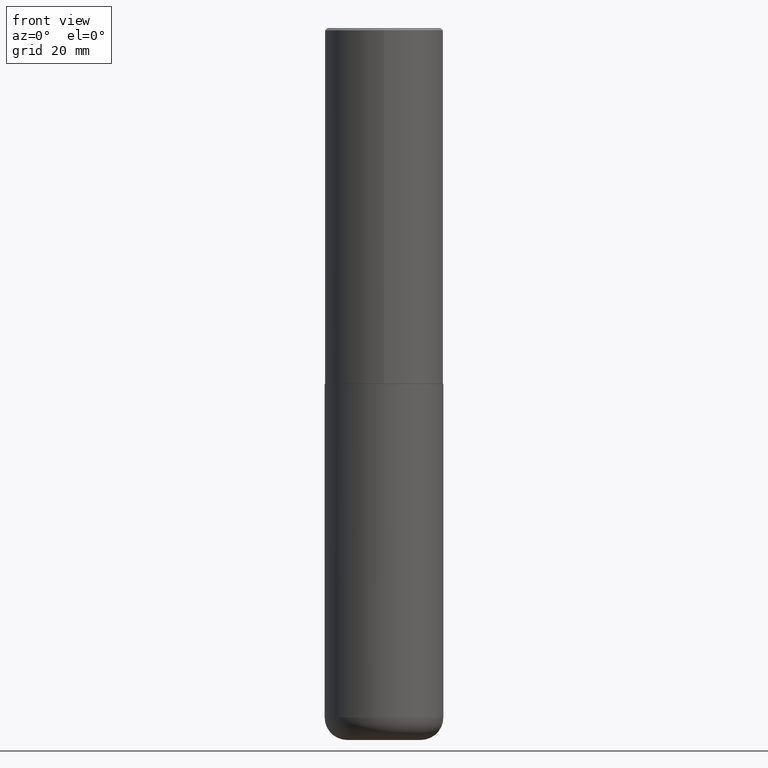
[diagram: clean part render]
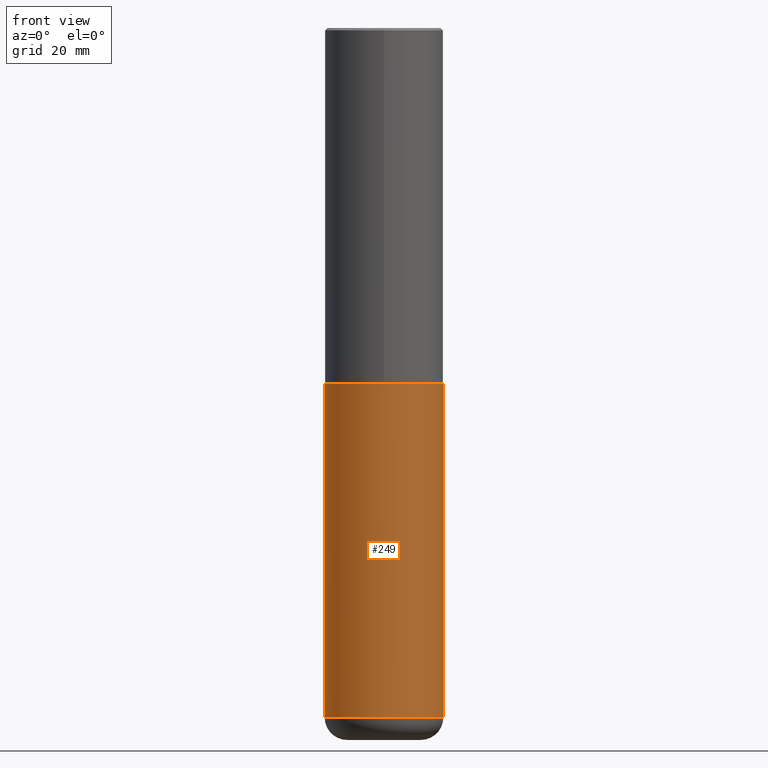
[diagram: same view with one face highlighted and labeled with its STEP entity id]
A machine part, front view. The second image highlights one B-rep face of the part: STEP entity #249.
In plain terms, the highlighted cylindrical surface (partial cylindrical patch) has radius 12.7 mm, axis along (-0, 0, 1).
Its self-contained STEP definition (entity closure, byte-faithful):
#15 = CARTESIAN_POINT ( 'NONE',  ( -0.5000000000000000000, -1.673279289987817518E-14, -5.810000000000000497 ) ) ;
#16 = CARTESIAN_POINT ( 'NONE',  ( 7.336406418555409790E-29, -1.047444401652943635E-14, -3.000000000000000444 ) ) ;
#18 = AXIS2_PLACEMENT_3D ( 'NONE', #118, #318, #63 ) ;
#39 = VERTEX_POINT ( 'NONE', #333 ) ;
#59 = EDGE_CURVE ( 'NONE', #227, #39, #188, .T. ) ;
#63 = DIRECTION ( 'NONE',  ( 1.000000000000000000, -6.982962677686266711E-15, 4.876176775795935793E-29 ) ) ;
#101 = EDGE_CURVE ( 'NONE', #113, #227, #274, .T. ) ;
#113 = VERTEX_POINT ( 'NONE', #15 ) ;
#116 = ORIENTED_EDGE ( 'NONE', *, *, #59, .F. ) ;
#117 = EDGE_CURVE ( 'NONE', #291, #39, #271, .T. ) ;
#118 = CARTESIAN_POINT ( 'NONE',  ( 0.000000000000000000, 0.000000000000000000, 0.000000000000000000 ) ) ;
#121 = FACE_OUTER_BOUND ( 'NONE', #194, .T. ) ;
#137 = EDGE_CURVE ( 'NONE', #113, #291, #396, .T. ) ;
#142 = ORIENTED_EDGE ( 'NONE', *, *, #137, .T. ) ;
#176 = DIRECTION ( 'NONE',  ( -2.445468806185136877E-29, 3.491481338843145188E-15, 1.000000000000000000 ) ) ;
#188 = CIRCLE ( 'NONE', #410, 0.5000000000000000000 ) ;
#194 = EDGE_LOOP ( 'NONE', ( #266, #142, #232, #116 ) ) ;
#208 = DIRECTION ( 'NONE',  ( -2.445468806185136597E-29, 3.491481338843145583E-15, 1.000000000000000000 ) ) ;
#211 = CARTESIAN_POINT ( 'NONE',  ( -0.5000000000000000000, 3.552713678800500929E-15, -2.459467545127452891E-29 ) ) ;
#227 = VERTEX_POINT ( 'NONE', #377 ) ;
#232 = ORIENTED_EDGE ( 'NONE', *, *, #117, .T. ) ;
#246 = AXIS2_PLACEMENT_3D ( 'NONE', #273, #208, #372 ) ;
#249 = ADVANCED_FACE ( 'NONE', ( #121 ), #312, .T. ) ;
#266 = ORIENTED_EDGE ( 'NONE', *, *, #101, .F. ) ;
#271 = LINE ( 'NONE', #330, #384 ) ;
#273 = CARTESIAN_POINT ( 'NONE',  ( 1.420817376393564695E-28, -2.028550657867867926E-14, -5.810000000000000497 ) ) ;
#274 = LINE ( 'NONE', #211, #332 ) ;
#281 = CARTESIAN_POINT ( 'NONE',  ( 0.5000000000000000000, -2.377698791752181577E-14, -5.810000000000000497 ) ) ;
#291 = VERTEX_POINT ( 'NONE', #281 ) ;
#312 = CYLINDRICAL_SURFACE ( 'NONE', #18, 0.5000000000000000000 ) ;
#318 = DIRECTION ( 'NONE',  ( -2.445468806185136597E-29, 3.491481338843145583E-15, 1.000000000000000000 ) ) ;
#330 = CARTESIAN_POINT ( 'NONE',  ( 0.5000000000000000000, -3.491481338843133355E-15, 2.438088387897967896E-29 ) ) ;
#332 = VECTOR ( 'NONE', #176, 39.37007874015748143 ) ;
#333 = CARTESIAN_POINT ( 'NONE',  ( 0.5000000000000000000, -1.396592535537257129E-14, -3.000000000000000444 ) ) ;
#338 = DIRECTION ( 'NONE',  ( -2.445468806185136597E-29, 3.491481338843145583E-15, 1.000000000000000000 ) ) ;
#372 = DIRECTION ( 'NONE',  ( 1.000000000000000000, -6.982962677686270655E-15, 0.000000000000000000 ) ) ;
#375 = DIRECTION ( 'NONE',  ( 1.000000000000000000, -6.982962677686266711E-15, 0.000000000000000000 ) ) ;
#377 = CARTESIAN_POINT ( 'NONE',  ( -0.5000000000000000000, -1.182726161880355609E-14, -3.000000000000000444 ) ) ;
#384 = VECTOR ( 'NONE', #402, 39.37007874015748143 ) ;
#396 = CIRCLE ( 'NONE', #246, 0.5000000000000000000 ) ;
#402 = DIRECTION ( 'NONE',  ( -2.445468806185136877E-29, 3.491481338843145188E-15, 1.000000000000000000 ) ) ;
#410 = AXIS2_PLACEMENT_3D ( 'NONE', #16, #338, #375 ) ;